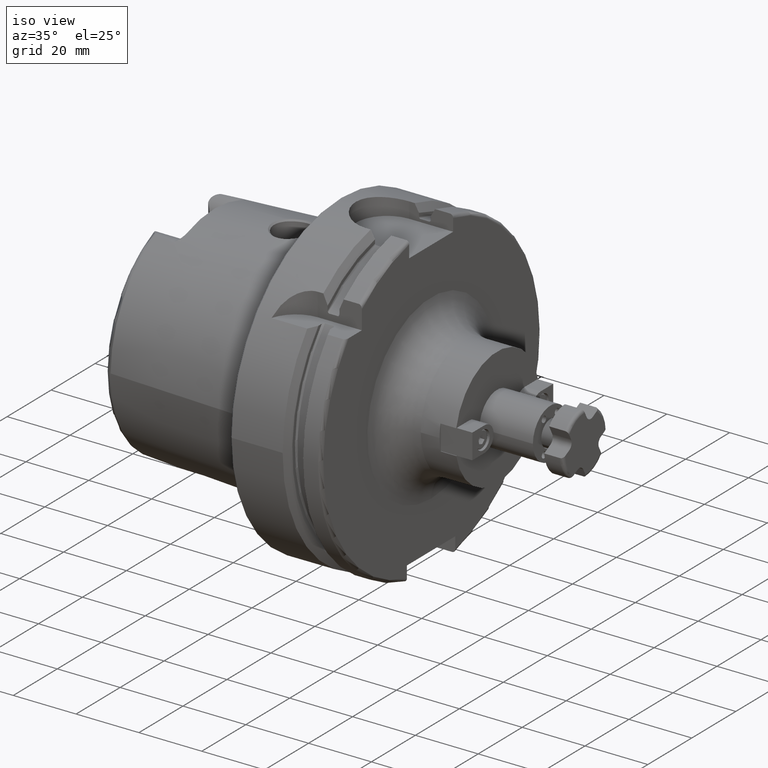
[diagram: clean part render]
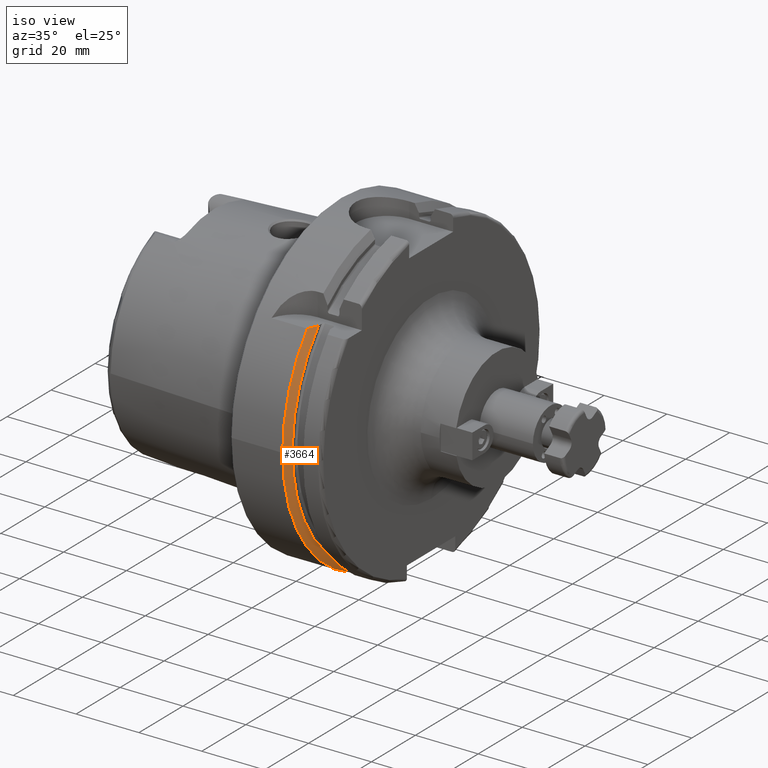
[diagram: same view with one face highlighted and labeled with its STEP entity id]
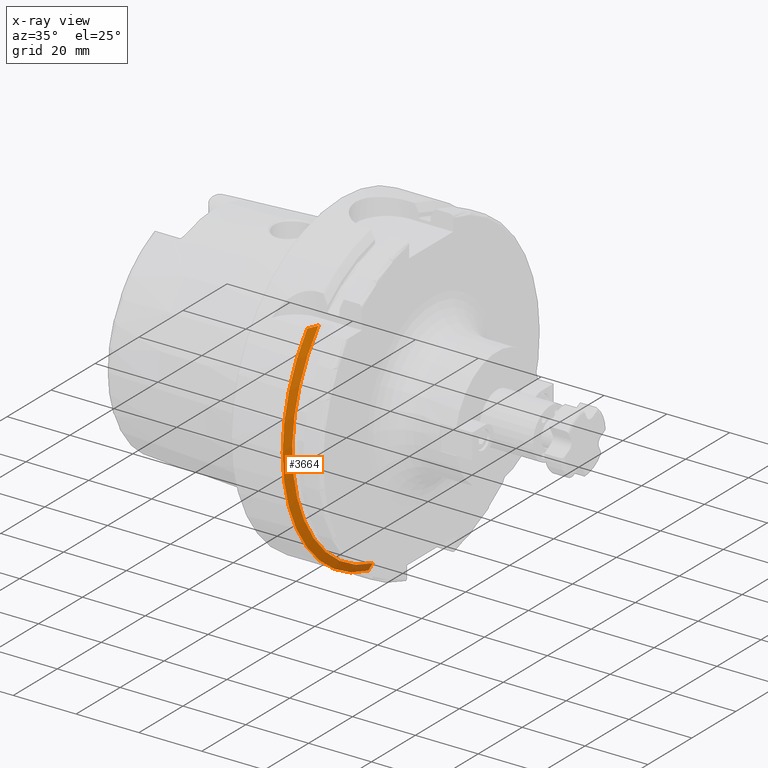
[diagram: x-ray of the same camera — body ghosted, the highlighted face saturated]
A machine part, iso view. The second image highlights one B-rep face of the part: STEP entity #3664.
The next image is the same camera in x-ray: the body ghosted, the highlighted face saturated — about 4% of this face is hidden behind the body in this view.
In plain terms, the highlighted conical surface has half-angle 60 deg.
Its self-contained STEP definition (entity closure, byte-faithful):
#555=(
BOUNDED_CURVE()
B_SPLINE_CURVE(2,(#6479,#6480,#6481),.UNSPECIFIED.,.F.,.F.)
B_SPLINE_CURVE_WITH_KNOTS((3,3),(0.,0.343884390880417),.UNSPECIFIED.)
CURVE()
GEOMETRIC_REPRESENTATION_ITEM()
RATIONAL_B_SPLINE_CURVE((1.,1.00052016257104,1.))
REPRESENTATION_ITEM('')
);
#562=(
BOUNDED_CURVE()
B_SPLINE_CURVE(2,(#6757,#6758,#6759),.UNSPECIFIED.,.F.,.F.)
B_SPLINE_CURVE_WITH_KNOTS((3,3),(0.,0.282923490805558),.UNSPECIFIED.)
CURVE()
GEOMETRIC_REPRESENTATION_ITEM()
RATIONAL_B_SPLINE_CURVE((1.,1.00031934109636,1.))
REPRESENTATION_ITEM('')
);
#945=FACE_OUTER_BOUND('',#1143,.T.);
#1143=EDGE_LOOP('',(#3233,#3234,#3235,#3236,#3237));
#1657=CIRCLE('',#4015,50.);
#1659=CIRCLE('',#4017,50.);
#1720=CIRCLE('',#4145,47.5975952641917);
#1947=VERTEX_POINT('',#6476);
#1948=VERTEX_POINT('',#6478);
#1965=VERTEX_POINT('',#6580);
#1966=VERTEX_POINT('',#6582);
#1994=VERTEX_POINT('',#6755);
#2301=EDGE_CURVE('',#1948,#1947,#555,.T.);
#2320=EDGE_CURVE('',#1966,#1965,#1657,.T.);
#2323=EDGE_CURVE('',#1947,#1966,#1659,.T.);
#2363=EDGE_CURVE('',#1965,#1994,#562,.T.);
#2453=EDGE_CURVE('',#1948,#1994,#1720,.T.);
#3233=ORIENTED_EDGE('',*,*,#2301,.T.);
#3234=ORIENTED_EDGE('',*,*,#2323,.T.);
#3235=ORIENTED_EDGE('',*,*,#2320,.T.);
#3236=ORIENTED_EDGE('',*,*,#2363,.T.);
#3237=ORIENTED_EDGE('',*,*,#2453,.F.);
#3537=CONICAL_SURFACE('',#4144,48.7987976320958,1.0471975511966);
#3664=ADVANCED_FACE('',(#945),#3537,.T.);
#4015=AXIS2_PLACEMENT_3D('',#6583,#4690,#4691);
#4017=AXIS2_PLACEMENT_3D('',#6587,#4695,#4696);
#4144=AXIS2_PLACEMENT_3D('',#7021,#4993,#4994);
#4145=AXIS2_PLACEMENT_3D('',#7022,#4995,#4996);
#4690=DIRECTION('center_axis',(1.,0.,0.));
#4691=DIRECTION('ref_axis',(0.,0.,-1.));
#4695=DIRECTION('center_axis',(1.,0.,0.));
#4696=DIRECTION('ref_axis',(0.,0.,-1.));
#4993=DIRECTION('center_axis',(-1.,0.,0.));
#4994=DIRECTION('ref_axis',(0.,-0.951449961441176,-0.307803461438603));
#4995=DIRECTION('center_axis',(1.,0.,0.));
#4996=DIRECTION('ref_axis',(0.,0.,-1.));
#6476=CARTESIAN_POINT('',(16.7379709790786,-38.8297566307078,31.5));
#6478=CARTESIAN_POINT('',(18.125,-35.6830642593065,31.5));
#6479=CARTESIAN_POINT('Ctrl Pts',(18.125,-35.6830642593066,31.5));
#6480=CARTESIAN_POINT('Ctrl Pts',(17.4607727557241,-37.2176818849689,31.5));
#6481=CARTESIAN_POINT('Ctrl Pts',(16.7379709790786,-38.8297566307079,31.5));
#6580=CARTESIAN_POINT('',(16.7379709790786,-11.,-48.7749935930288));
#6582=CARTESIAN_POINT('',(16.7379709790786,-50.,-6.12323399573677E-15));
#6583=CARTESIAN_POINT('Origin',(16.7379709790786,0.,0.));
#6587=CARTESIAN_POINT('Origin',(16.7379709790786,0.,0.));
#6755=CARTESIAN_POINT('',(18.125,-11.,-46.3090819919139));
#6757=CARTESIAN_POINT('Ctrl Pts',(16.7379709790786,-11.,-48.7749935930288));
#6758=CARTESIAN_POINT('Ctrl Pts',(17.4494711035784,-11.,-47.5116880808765));
#6759=CARTESIAN_POINT('Ctrl Pts',(18.125,-11.,-46.3090819919139));
#7021=CARTESIAN_POINT('Origin',(17.4314854895393,0.,0.));
#7022=CARTESIAN_POINT('Origin',(18.125,0.,0.));